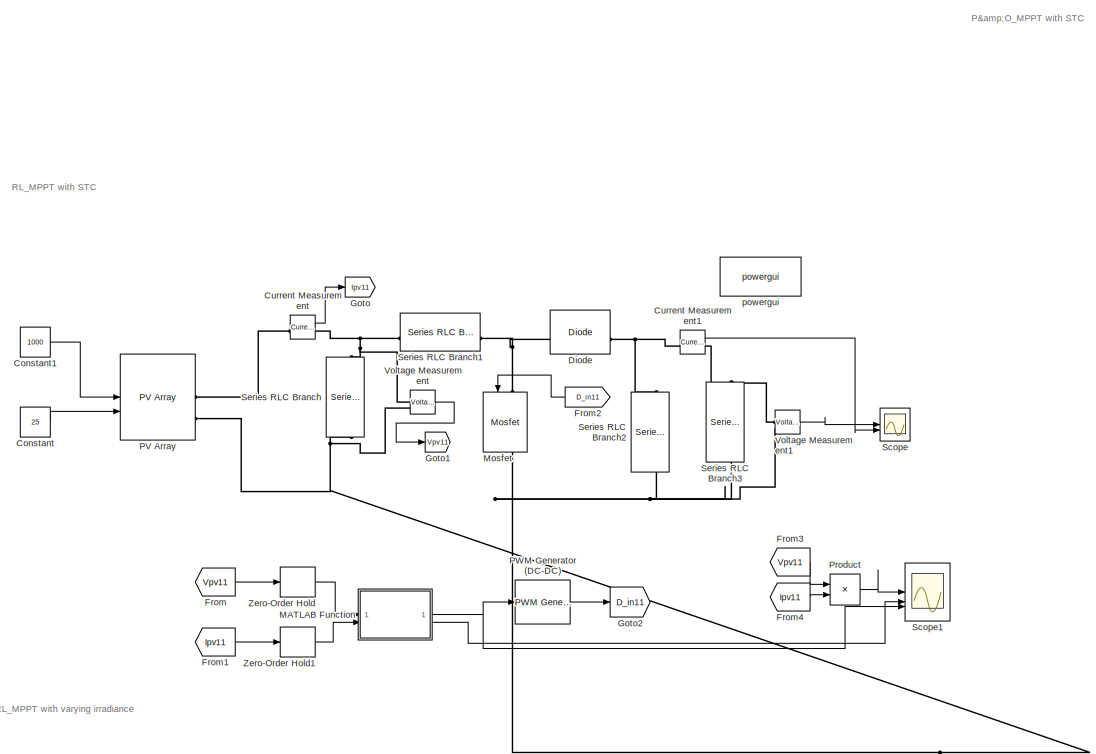
[diagram: root canvas - part 1/5, top left region]
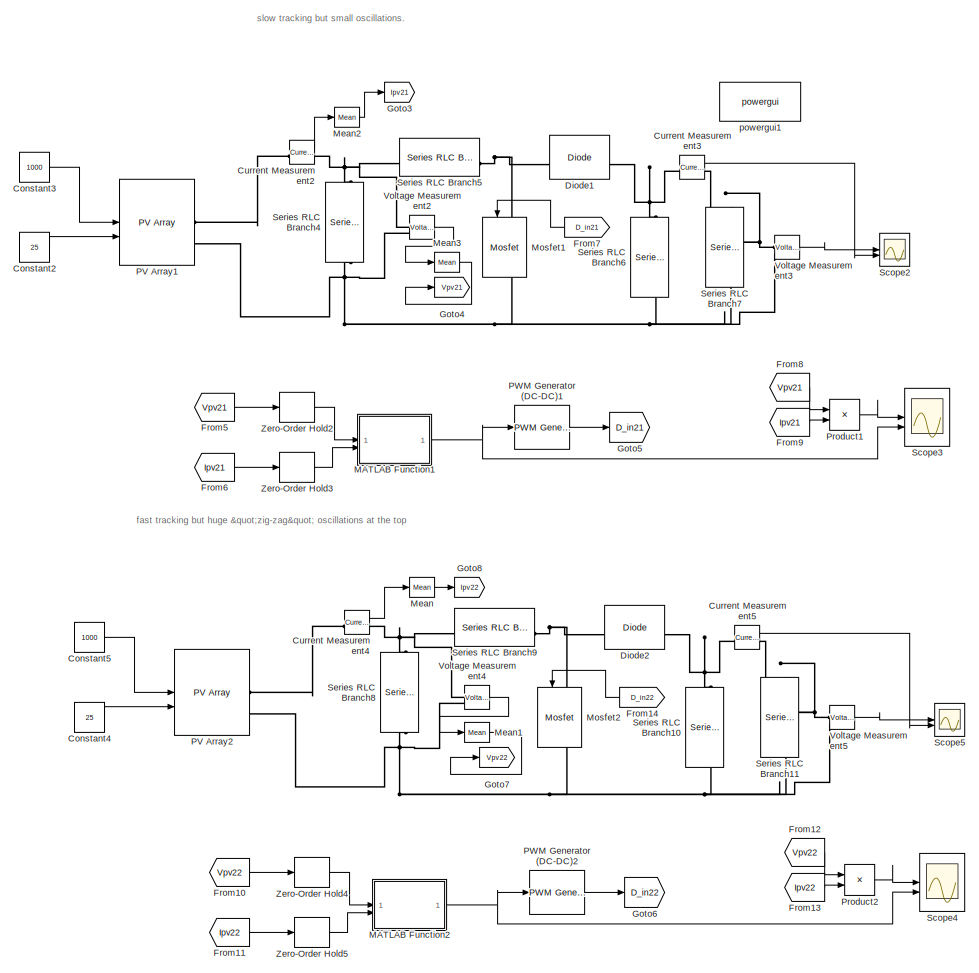
[diagram: root canvas - part 2/5, center side, full height]
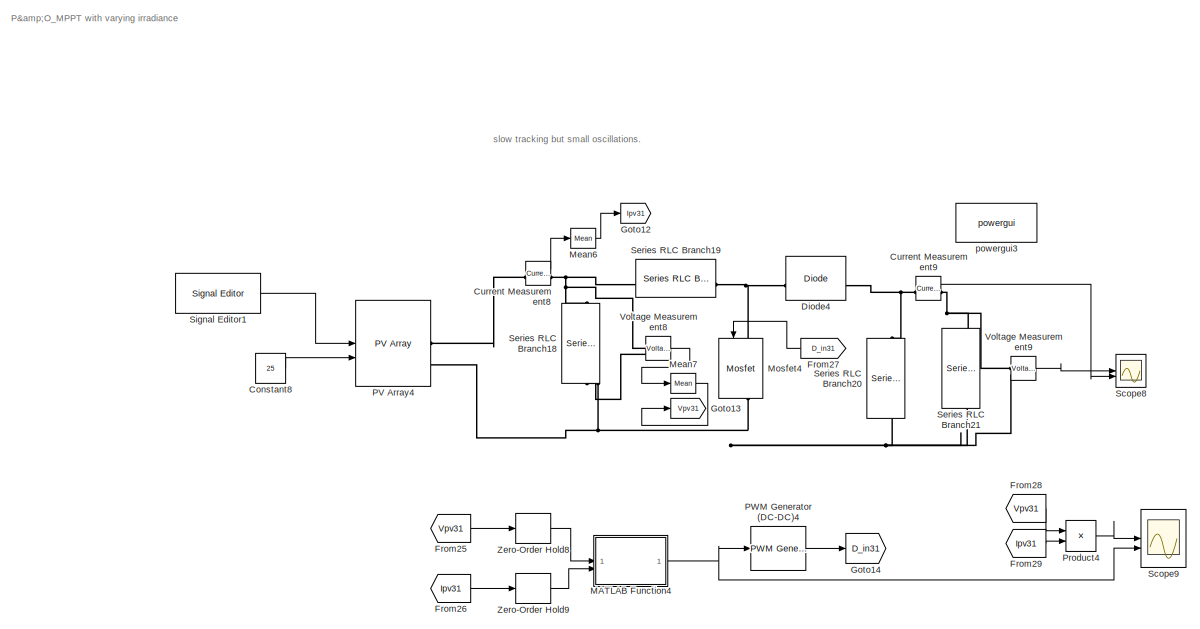
[diagram: root canvas - part 3/5, middle right region]
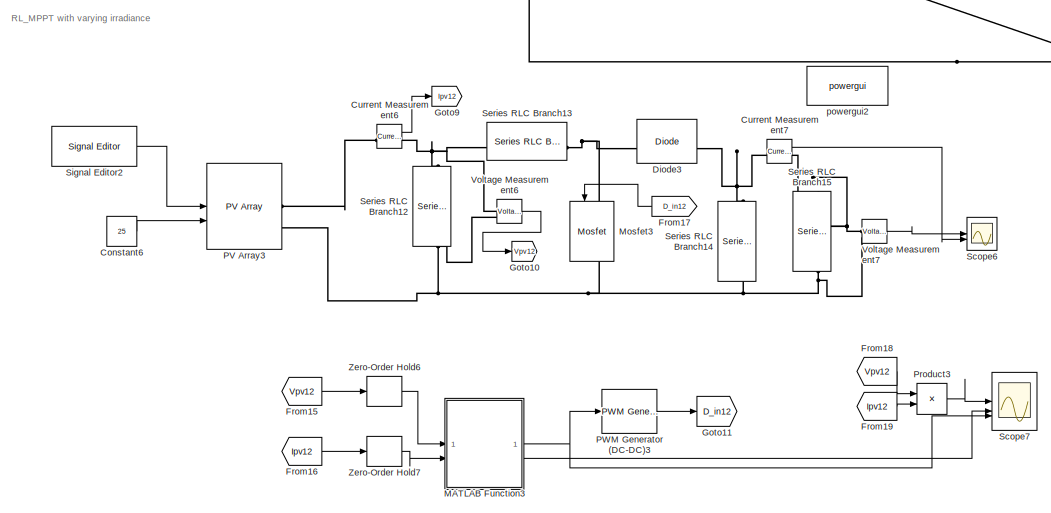
[diagram: root canvas - part 4/5, bottom left region]
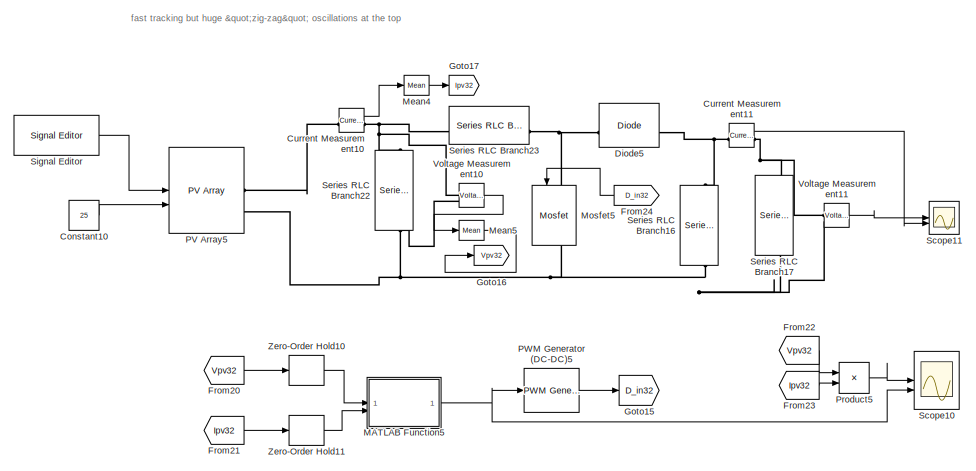
[diagram: root canvas - part 5/5, bottom right region]
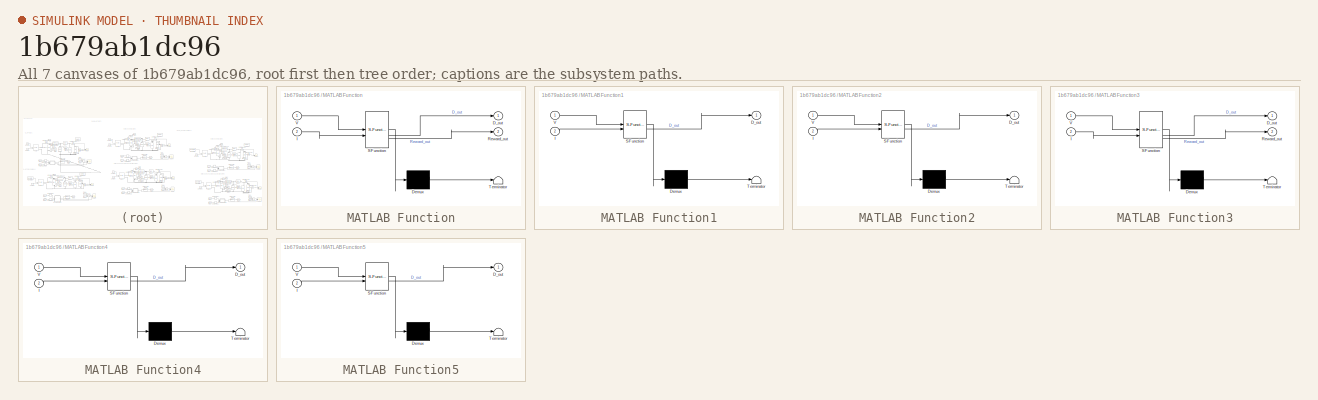
[diagram: thumbnail index - all 7 canvases of the model, root first then tree order]
MODEL slx_1b679ab1dc96
KIND model
CONFIG AbsTol = auto
CONFIG EnableMultiTasking = off
CONFIG FixedStep = 1e-5
CONFIG MaxStep = auto
CONFIG MinStep = auto
CONFIG RelTol = 1e-3
CONFIG SampleTimeConstraint = Unconstrained
CONFIG SolverName = FixedStepAuto
CONFIG StartTime = 0.0
CONFIG StopTime = 9
BLOCK [Constant] Constant
  Value = 25
BLOCK [Constant] Constant1
  Value = 1000
BLOCK [Constant] Constant10
  Value = 25
BLOCK [Constant] Constant2
  Value = 25
BLOCK [Constant] Constant3
  Value = 1000
BLOCK [Constant] Constant4
  Value = 25
BLOCK [Constant] Constant5
  Value = 1000
BLOCK [Constant] Constant6
  Value = 25
BLOCK [Constant] Constant8
  Value = 25
BLOCK [Reference] Current Measurement  REF=spsCurrentMeasurementLib/Current Measurement
  LibrarySourceBlock = sps_lib/Sensors and Measurements/Current Measurement
  SourceBlock = spsCurrentMeasurementLib/Current Measurement
  SourceType = Current Measurement
  UserDataPersistent = on
BLOCK [Reference] Current Measurement1  REF=spsCurrentMeasurementLib/Current Measurement
  LibrarySourceBlock = sps_lib/Sensors and Measurements/Current Measurement
  SourceBlock = spsCurrentMeasurementLib/Current Measurement
  SourceType = Current Measurement
  UserDataPersistent = on
BLOCK [Reference] Current Measurement10  REF=spsCurrentMeasurementLib/Current Measurement
  LibrarySourceBlock = sps_lib/Sensors and Measurements/Current Measurement
  SourceBlock = spsCurrentMeasurementLib/Current Measurement
  SourceType = Current Measurement
  UserDataPersistent = on
BLOCK [Reference] Current Measurement11  REF=spsCurrentMeasurementLib/Current Measurement
  LibrarySourceBlock = sps_lib/Sensors and Measurements/Current Measurement
  SourceBlock = spsCurrentMeasurementLib/Current Measurement
  SourceType = Current Measurement
  UserDataPersistent = on
BLOCK [Reference] Current Measurement2  REF=spsCurrentMeasurementLib/Current Measurement
  LibrarySourceBlock = sps_lib/Sensors and Measurements/Current Measurement
  SourceBlock = spsCurrentMeasurementLib/Current Measurement
  SourceType = Current Measurement
  UserDataPersistent = on
BLOCK [Reference] Current Measurement3  REF=spsCurrentMeasurementLib/Current Measurement
  LibrarySourceBlock = sps_lib/Sensors and Measurements/Current Measurement
  SourceBlock = spsCurrentMeasurementLib/Current Measurement
  SourceType = Current Measurement
  UserDataPersistent = on
BLOCK [Reference] Current Measurement4  REF=spsCurrentMeasurementLib/Current Measurement
  LibrarySourceBlock = sps_lib/Sensors and Measurements/Current Measurement
  SourceBlock = spsCurrentMeasurementLib/Current Measurement
  SourceType = Current Measurement
  UserDataPersistent = on
BLOCK [Reference] Current Measurement5  REF=spsCurrentMeasurementLib/Current Measurement
  LibrarySourceBlock = sps_lib/Sensors and Measurements/Current Measurement
  SourceBlock = spsCurrentMeasurementLib/Current Measurement
  SourceType = Current Measurement
  UserDataPersistent = on
BLOCK [Reference] Current Measurement6  REF=spsCurrentMeasurementLib/Current Measurement
  LibrarySourceBlock = sps_lib/Sensors and Measurements/Current Measurement
  SourceBlock = spsCurrentMeasurementLib/Current Measurement
  SourceType = Current Measurement
  UserDataPersistent = on
BLOCK [Reference] Current Measurement7  REF=spsCurrentMeasurementLib/Current Measurement
  LibrarySourceBlock = sps_lib/Sensors and Measurements/Current Measurement
  SourceBlock = spsCurrentMeasurementLib/Current Measurement
  SourceType = Current Measurement
  UserDataPersistent = on
BLOCK [Reference] Current Measurement8  REF=spsCurrentMeasurementLib/Current Measurement
  LibrarySourceBlock = sps_lib/Sensors and Measurements/Current Measurement
  SourceBlock = spsCurrentMeasurementLib/Current Measurement
  SourceType = Current Measurement
  UserDataPersistent = on
BLOCK [Reference] Current Measurement9  REF=spsCurrentMeasurementLib/Current Measurement
  LibrarySourceBlock = sps_lib/Sensors and Measurements/Current Measurement
  SourceBlock = spsCurrentMeasurementLib/Current Measurement
  SourceType = Current Measurement
  UserDataPersistent = on
BLOCK [Reference] Diode  REF=spsDiodeLib/Diode
  LibrarySourceBlock = sps_lib/Power Electronics/Diode
  SourceBlock = spsDiodeLib/Diode
  SourceType = Diode
BLOCK [Reference] Diode1  REF=spsDiodeLib/Diode
  LibrarySourceBlock = sps_lib/Power Electronics/Diode
  SourceBlock = spsDiodeLib/Diode
  SourceType = Diode
BLOCK [Reference] Diode2  REF=spsDiodeLib/Diode
  LibrarySourceBlock = sps_lib/Power Electronics/Diode
  SourceBlock = spsDiodeLib/Diode
  SourceType = Diode
BLOCK [Reference] Diode3  REF=spsDiodeLib/Diode
  LibrarySourceBlock = sps_lib/Power Electronics/Diode
  SourceBlock = spsDiodeLib/Diode
  SourceType = Diode
BLOCK [Reference] Diode4  REF=spsDiodeLib/Diode
  LibrarySourceBlock = sps_lib/Power Electronics/Diode
  SourceBlock = spsDiodeLib/Diode
  SourceType = Diode
BLOCK [Reference] Diode5  REF=spsDiodeLib/Diode
  LibrarySourceBlock = sps_lib/Power Electronics/Diode
  SourceBlock = spsDiodeLib/Diode
  SourceType = Diode
BLOCK [From] From
  GotoTag = Vpv11
  TagVisibility = global
BLOCK [From] From1
  GotoTag = Ipv11
  TagVisibility = global
BLOCK [From] From10
  GotoTag = Vpv22
  TagVisibility = global
BLOCK [From] From11
  GotoTag = Ipv22
  TagVisibility = global
BLOCK [From] From12
  GotoTag = Vpv22
  TagVisibility = global
BLOCK [From] From13
  GotoTag = Ipv22
  TagVisibility = global
BLOCK [From] From14
  GotoTag = D_in22
  NameLocation = top
  TagVisibility = global
BLOCK [From] From15
  GotoTag = Vpv12
  TagVisibility = global
BLOCK [From] From16
  GotoTag = Ipv12
  TagVisibility = global
BLOCK [From] From17
  GotoTag = D_in12
  NameLocation = top
  TagVisibility = global
BLOCK [From] From18
  GotoTag = Vpv12
  TagVisibility = global
BLOCK [From] From19
  GotoTag = Ipv12
  TagVisibility = global
BLOCK [From] From2
  GotoTag = D_in11
  NameLocation = top
  TagVisibility = global
BLOCK [From] From20
  GotoTag = Vpv32
  TagVisibility = global
BLOCK [From] From21
  GotoTag = Ipv32
  TagVisibility = global
BLOCK [From] From22
  GotoTag = Vpv32
  TagVisibility = global
BLOCK [From] From23
  GotoTag = Ipv32
  TagVisibility = global
BLOCK [From] From24
  GotoTag = D_in32
  NameLocation = top
  TagVisibility = global
BLOCK [From] From25
  GotoTag = Vpv31
  TagVisibility = global
BLOCK [From] From26
  GotoTag = Ipv31
  TagVisibility = global
BLOCK [From] From27
  GotoTag = D_in31
  NameLocation = top
  TagVisibility = global
BLOCK [From] From28
  GotoTag = Vpv31
  TagVisibility = global
BLOCK [From] From29
  GotoTag = Ipv31
  TagVisibility = global
BLOCK [From] From3
  GotoTag = Vpv11
  TagVisibility = global
BLOCK [From] From4
  GotoTag = Ipv11
  TagVisibility = global
BLOCK [From] From5
  GotoTag = Vpv21
  TagVisibility = global
BLOCK [From] From6
  GotoTag = Ipv21
  TagVisibility = global
BLOCK [From] From7
  GotoTag = D_in21
  NameLocation = top
  TagVisibility = global
BLOCK [From] From8
  GotoTag = Vpv21
  TagVisibility = global
BLOCK [From] From9
  GotoTag = Ipv21
  TagVisibility = global
BLOCK [Goto] Goto
  GotoTag = Ipv11
  TagVisibility = global
BLOCK [Goto] Goto1
  GotoTag = Vpv11
  TagVisibility = global
BLOCK [Goto] Goto10
  GotoTag = Vpv12
  TagVisibility = global
BLOCK [Goto] Goto11
  GotoTag = D_in12
  TagVisibility = global
BLOCK [Goto] Goto12
  GotoTag = Ipv31
  TagVisibility = global
BLOCK [Goto] Goto13
  GotoTag = Vpv31
  TagVisibility = global
BLOCK [Goto] Goto14
  GotoTag = D_in31
  TagVisibility = global
BLOCK [Goto] Goto15
  GotoTag = D_in32
  TagVisibility = global
BLOCK [Goto] Goto16
  GotoTag = Vpv32
  TagVisibility = global
BLOCK [Goto] Goto17
  GotoTag = Ipv32
  TagVisibility = global
BLOCK [Goto] Goto2
  GotoTag = D_in11
  TagVisibility = global
BLOCK [Goto] Goto3
  GotoTag = Ipv21
  TagVisibility = global
BLOCK [Goto] Goto4
  GotoTag = Vpv21
  TagVisibility = global
BLOCK [Goto] Goto5
  GotoTag = D_in21
  TagVisibility = global
BLOCK [Goto] Goto6
  GotoTag = D_in22
  TagVisibility = global
BLOCK [Goto] Goto7
  GotoTag = Vpv22
  TagVisibility = global
BLOCK [Goto] Goto8
  GotoTag = Ipv22
  TagVisibility = global
BLOCK [Goto] Goto9
  GotoTag = Ipv12
  TagVisibility = global
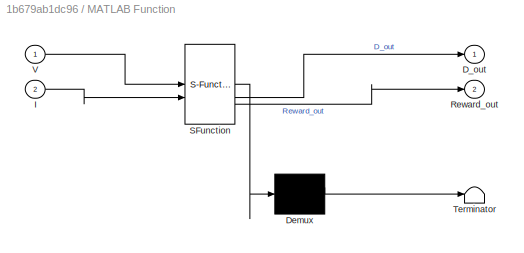
BLOCK [SubSystem] MATLAB Function
  ErrorFcn = Stateflow.Translate.translate
  PermitHierarchicalResolution = ExplicitOnly
  SFBlockType = MATLAB Function
  TreatAsAtomicUnit = on
BLOCK [Demux] MATLAB Function/ Demux 
  Outputs = 1
BLOCK [S-Function] MATLAB Function/ SFunction 
  EnableBusSupport = on
  FunctionName = sf_sfun
  PortCounts = [2 3]
  SFcnIsStateOwnerBlock = off
  SFunctionDeploymentMode = off
  Tag = Stateflow S-Function 2
BLOCK [Terminator] MATLAB Function/ Terminator 
BLOCK [Outport] MATLAB Function/D_out
BLOCK [Inport] MATLAB Function/I
  Port = 2
BLOCK [Outport] MATLAB Function/Reward_out
  Port = 2
BLOCK [Inport] MATLAB Function/V
BLOCK [SubSystem] MATLAB Function1
  ErrorFcn = Stateflow.Translate.translate
  PermitHierarchicalResolution = ExplicitOnly
  SFBlockType = MATLAB Function
  TreatAsAtomicUnit = on
BLOCK [Demux] MATLAB Function1/ Demux 
  Outputs = 1
BLOCK [S-Function] MATLAB Function1/ SFunction 
  EnableBusSupport = on
  FunctionName = sf_sfun
  PortCounts = [2 2]
  SFcnIsStateOwnerBlock = off
  SFunctionDeploymentMode = off
  Tag = Stateflow S-Function 1
BLOCK [Terminator] MATLAB Function1/ Terminator 
BLOCK [Outport] MATLAB Function1/D_out
BLOCK [Inport] MATLAB Function1/I
  Port = 2
BLOCK [Inport] MATLAB Function1/V
BLOCK [SubSystem] MATLAB Function2
  ErrorFcn = Stateflow.Translate.translate
  PermitHierarchicalResolution = ExplicitOnly
  SFBlockType = MATLAB Function
  TreatAsAtomicUnit = on
BLOCK [Demux] MATLAB Function2/ Demux 
  Outputs = 1
BLOCK [S-Function] MATLAB Function2/ SFunction 
  EnableBusSupport = on
  FunctionName = sf_sfun
  PortCounts = [2 2]
  SFcnIsStateOwnerBlock = off
  SFunctionDeploymentMode = off
  Tag = Stateflow S-Function 3
BLOCK [Terminator] MATLAB Function2/ Terminator 
BLOCK [Outport] MATLAB Function2/D_out
BLOCK [Inport] MATLAB Function2/I
  Port = 2
BLOCK [Inport] MATLAB Function2/V
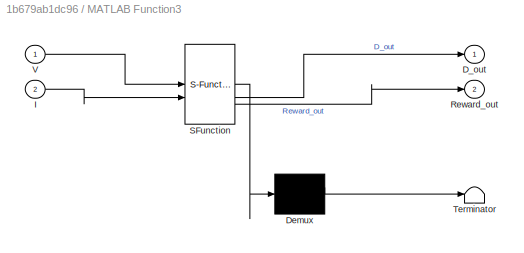
BLOCK [SubSystem] MATLAB Function3
  ErrorFcn = Stateflow.Translate.translate
  PermitHierarchicalResolution = ExplicitOnly
  SFBlockType = MATLAB Function
  TreatAsAtomicUnit = on
BLOCK [Demux] MATLAB Function3/ Demux 
  Outputs = 1
BLOCK [S-Function] MATLAB Function3/ SFunction 
  EnableBusSupport = on
  FunctionName = sf_sfun
  PortCounts = [2 3]
  SFcnIsStateOwnerBlock = off
  SFunctionDeploymentMode = off
  Tag = Stateflow S-Function 4
BLOCK [Terminator] MATLAB Function3/ Terminator 
BLOCK [Outport] MATLAB Function3/D_out
BLOCK [Inport] MATLAB Function3/I
  Port = 2
BLOCK [Outport] MATLAB Function3/Reward_out
  Port = 2
BLOCK [Inport] MATLAB Function3/V
BLOCK [SubSystem] MATLAB Function4
  ErrorFcn = Stateflow.Translate.translate
  PermitHierarchicalResolution = ExplicitOnly
  SFBlockType = MATLAB Function
  TreatAsAtomicUnit = on
BLOCK [Demux] MATLAB Function4/ Demux 
  Outputs = 1
BLOCK [S-Function] MATLAB Function4/ SFunction 
  EnableBusSupport = on
  FunctionName = sf_sfun
  PortCounts = [2 2]
  SFcnIsStateOwnerBlock = off
  SFunctionDeploymentMode = off
  Tag = Stateflow S-Function 5
BLOCK [Terminator] MATLAB Function4/ Terminator 
BLOCK [Outport] MATLAB Function4/D_out
BLOCK [Inport] MATLAB Function4/I
  Port = 2
BLOCK [Inport] MATLAB Function4/V
BLOCK [SubSystem] MATLAB Function5
  ErrorFcn = Stateflow.Translate.translate
  PermitHierarchicalResolution = ExplicitOnly
  SFBlockType = MATLAB Function
  TreatAsAtomicUnit = on
BLOCK [Demux] MATLAB Function5/ Demux 
  Outputs = 1
BLOCK [S-Function] MATLAB Function5/ SFunction 
  EnableBusSupport = on
  FunctionName = sf_sfun
  PortCounts = [2 2]
  SFcnIsStateOwnerBlock = off
  SFunctionDeploymentMode = off
  Tag = Stateflow S-Function 6
BLOCK [Terminator] MATLAB Function5/ Terminator 
BLOCK [Outport] MATLAB Function5/D_out
BLOCK [Inport] MATLAB Function5/I
  Port = 2
BLOCK [Inport] MATLAB Function5/V
BLOCK [Reference] Mean  REF=spsMeanLib/Mean
  LibrarySourceBlock = sps_lib/Sensors and Measurements/Mean
  SourceBlock = spsMeanLib/Mean
  SourceType = Mean
BLOCK [Reference] Mean1  REF=spsMeanLib/Mean
  LibrarySourceBlock = sps_lib/Sensors and Measurements/Mean
  SourceBlock = spsMeanLib/Mean
  SourceType = Mean
BLOCK [Reference] Mean2  REF=spsMeanLib/Mean
  LibrarySourceBlock = sps_lib/Sensors and Measurements/Mean
  SourceBlock = spsMeanLib/Mean
  SourceType = Mean
BLOCK [Reference] Mean3  REF=spsMeanLib/Mean
  LibrarySourceBlock = sps_lib/Sensors and Measurements/Mean
  SourceBlock = spsMeanLib/Mean
  SourceType = Mean
BLOCK [Reference] Mean4  REF=spsMeanLib/Mean
  LibrarySourceBlock = sps_lib/Sensors and Measurements/Mean
  SourceBlock = spsMeanLib/Mean
  SourceType = Mean
BLOCK [Reference] Mean5  REF=spsMeanLib/Mean
  LibrarySourceBlock = sps_lib/Sensors and Measurements/Mean
  SourceBlock = spsMeanLib/Mean
  SourceType = Mean
BLOCK [Reference] Mean6  REF=spsMeanLib/Mean
  LibrarySourceBlock = sps_lib/Sensors and Measurements/Mean
  SourceBlock = spsMeanLib/Mean
  SourceType = Mean
BLOCK [Reference] Mean7  REF=spsMeanLib/Mean
  LibrarySourceBlock = sps_lib/Sensors and Measurements/Mean
  SourceBlock = spsMeanLib/Mean
  SourceType = Mean
BLOCK [Reference] Mosfet  REF=spsMosfetLib/Mosfet
  LibrarySourceBlock = sps_lib/Power Electronics/Mosfet
  NameLocation = left
  SourceBlock = spsMosfetLib/Mosfet
  SourceType = Mosfet
BLOCK [Reference] Mosfet1  REF=spsMosfetLib/Mosfet
  LibrarySourceBlock = sps_lib/Power Electronics/Mosfet
  NameLocation = left
  SourceBlock = spsMosfetLib/Mosfet
  SourceType = Mosfet
BLOCK [Reference] Mosfet2  REF=spsMosfetLib/Mosfet
  LibrarySourceBlock = sps_lib/Power Electronics/Mosfet
  NameLocation = left
  SourceBlock = spsMosfetLib/Mosfet
  SourceType = Mosfet
BLOCK [Reference] Mosfet3  REF=spsMosfetLib/Mosfet
  LibrarySourceBlock = sps_lib/Power Electronics/Mosfet
  NameLocation = left
  SourceBlock = spsMosfetLib/Mosfet
  SourceType = Mosfet
BLOCK [Reference] Mosfet4  REF=spsMosfetLib/Mosfet
  LibrarySourceBlock = sps_lib/Power Electronics/Mosfet
  NameLocation = left
  SourceBlock = spsMosfetLib/Mosfet
  SourceType = Mosfet
BLOCK [Reference] Mosfet5  REF=spsMosfetLib/Mosfet
  LibrarySourceBlock = sps_lib/Power Electronics/Mosfet
  NameLocation = left
  SourceBlock = spsMosfetLib/Mosfet
  SourceType = Mosfet
BLOCK [Reference] PV Array  REF=spsPVArrayLib/PV Array
  LibrarySourceBlock = sps_lib/Sources/PV Array
  SourceBlock = spsPVArrayLib/PV Array
  SourceType = PV array
BLOCK [Reference] PV Array1  REF=spsPVArrayLib/PV Array
  LibrarySourceBlock = sps_lib/Sources/PV Array
  SourceBlock = spsPVArrayLib/PV Array
  SourceType = PV array
BLOCK [Reference] PV Array2  REF=spsPVArrayLib/PV Array
  LibrarySourceBlock = sps_lib/Sources/PV Array
  SourceBlock = spsPVArrayLib/PV Array
  SourceType = PV array
BLOCK [Reference] PV Array3  REF=spsPVArrayLib/PV Array
  LibrarySourceBlock = sps_lib/Sources/PV Array
  SourceBlock = spsPVArrayLib/PV Array
  SourceType = PV array
BLOCK [Reference] PV Array4  REF=spsPVArrayLib/PV Array
  LibrarySourceBlock = sps_lib/Sources/PV Array
  SourceBlock = spsPVArrayLib/PV Array
  SourceType = PV array
BLOCK [Reference] PV Array5  REF=spsPVArrayLib/PV Array
  LibrarySourceBlock = sps_lib/Sources/PV Array
  SourceBlock = spsPVArrayLib/PV Array
  SourceType = PV array
BLOCK [Reference] PWM Generator (DC-DC)  REF=spsPWMGeneratorDCDCLib/PWM Generator
(DC-DC)
  LibrarySourceBlock = sps_lib/Power Electronics/Power Electronics Control/PWM Generator\n(DC-DC)
  SourceBlock = spsPWMGeneratorDCDCLib/PWM Generator\n(DC-DC)
  SourceType = PWM Generator (DC-DC)
BLOCK [Reference] PWM Generator (DC-DC)1  REF=spsPWMGeneratorDCDCLib/PWM Generator
(DC-DC)
  LibrarySourceBlock = sps_lib/Power Electronics/Power Electronics Control/PWM Generator\n(DC-DC)
  SourceBlock = spsPWMGeneratorDCDCLib/PWM Generator\n(DC-DC)
  SourceType = PWM Generator (DC-DC)
BLOCK [Reference] PWM Generator (DC-DC)2  REF=spsPWMGeneratorDCDCLib/PWM Generator
(DC-DC)
  LibrarySourceBlock = sps_lib/Power Electronics/Power Electronics Control/PWM Generator\n(DC-DC)
  SourceBlock = spsPWMGeneratorDCDCLib/PWM Generator\n(DC-DC)
  SourceType = PWM Generator (DC-DC)
BLOCK [Reference] PWM Generator (DC-DC)3  REF=spsPWMGeneratorDCDCLib/PWM Generator
(DC-DC)
  LibrarySourceBlock = sps_lib/Power Electronics/Power Electronics Control/PWM Generator\n(DC-DC)
  SourceBlock = spsPWMGeneratorDCDCLib/PWM Generator\n(DC-DC)
  SourceType = PWM Generator (DC-DC)
BLOCK [Reference] PWM Generator (DC-DC)4  REF=spsPWMGeneratorDCDCLib/PWM Generator
(DC-DC)
  LibrarySourceBlock = sps_lib/Power Electronics/Power Electronics Control/PWM Generator\n(DC-DC)
  SourceBlock = spsPWMGeneratorDCDCLib/PWM Generator\n(DC-DC)
  SourceType = PWM Generator (DC-DC)
BLOCK [Reference] PWM Generator (DC-DC)5  REF=spsPWMGeneratorDCDCLib/PWM Generator
(DC-DC)
  LibrarySourceBlock = sps_lib/Power Electronics/Power Electronics Control/PWM Generator\n(DC-DC)
  SourceBlock = spsPWMGeneratorDCDCLib/PWM Generator\n(DC-DC)
  SourceType = PWM Generator (DC-DC)
BLOCK [Product] Product
BLOCK [Product] Product1
BLOCK [Product] Product2
BLOCK [Product] Product3
BLOCK [Product] Product4
BLOCK [Product] Product5
BLOCK [Scope] Scope
  Floating = off
  NumInputPorts = 2
  ScopeSpecificationString = Simulink.scopes.TimeScopeBlockCfg('CurrentConfiguration', extmgr.ConfigurationSet(extmgr.Configuration('Core','General UI',true),extmgr.Configuration('Core','Source UI',true),extmgr.Configuration('Sources','WiredSimulink',true),extmgr.Configuration('Visuals','Time Domain',true,'SerializedDisplays',{struct('MinYLimReal','-4.29309','MaxYLimReal','38.63777','YLabelReal','','MinYLimMag','0.00000','Max...<+1456ch>
BLOCK [Scope] Scope1
  Floating = off
  NumInputPorts = 3
  ScopeSpecificationString = Simulink.scopes.TimeScopeBlockCfg('CurrentConfiguration', extmgr.ConfigurationSet(extmgr.Configuration('Core','General UI',true),extmgr.Configuration('Core','Source UI',true),extmgr.Configuration('Sources','WiredSimulink',true,'DataLoggingVariableName','ScopeData1'),extmgr.Configuration('Visuals','Time Domain',true,'SerializedDisplays',{struct('MinYLimReal','-58.70857','MaxYLimReal','73.39178','YL...<+3286ch>
BLOCK [Scope] Scope10
  Floating = off
  NumInputPorts = 2
  ScopeSpecificationString = Simulink.scopes.TimeScopeBlockCfg('CurrentConfiguration', extmgr.ConfigurationSet(extmgr.Configuration('Core','General UI',true),extmgr.Configuration('Core','Source UI',true),extmgr.Configuration('Sources','WiredSimulink',true,'DataLoggingVariableName','ScopeData3'),extmgr.Configuration('Visuals','Time Domain',true,'SerializedDisplays',{struct('MinYLimReal','-7.44307','MaxYLimReal','66.98759','YLa...<+2408ch>
BLOCK [Scope] Scope11
  Floating = off
  NumInputPorts = 2
  ScopeSpecificationString = Simulink.scopes.TimeScopeBlockCfg('CurrentConfiguration', extmgr.ConfigurationSet(extmgr.Configuration('Core','General UI',true),extmgr.Configuration('Core','Source UI',true),extmgr.Configuration('Sources','WiredSimulink',true,'DataLoggingVariableName','ScopeData4'),extmgr.Configuration('Visuals','Time Domain',true,'SerializedDisplays',{struct('MinYLimReal','-4.30143','MaxYLimReal','38.71289','YLa...<+1495ch>
BLOCK [Scope] Scope2
  Floating = off
  NumInputPorts = 2
  ScopeSpecificationString = Simulink.scopes.TimeScopeBlockCfg('CurrentConfiguration', extmgr.ConfigurationSet(extmgr.Configuration('Core','General UI',true),extmgr.Configuration('Core','Source UI',true),extmgr.Configuration('Sources','WiredSimulink',true,'DataLoggingVariableName','ScopeData1'),extmgr.Configuration('Visuals','Time Domain',true,'SerializedDisplays',{struct('MinYLimReal','-4.29309','MaxYLimReal','38.63777','YLa...<+1495ch>
BLOCK [Scope] Scope3
  Floating = off
  NumInputPorts = 2
  ScopeSpecificationString = Simulink.scopes.TimeScopeBlockCfg('CurrentConfiguration', extmgr.ConfigurationSet(extmgr.Configuration('Core','General UI',true),extmgr.Configuration('Core','Source UI',true),extmgr.Configuration('Sources','WiredSimulink',true,'DataLoggingVariableName','ScopeData2'),extmgr.Configuration('Visuals','Time Domain',true,'SerializedDisplays',{struct('MinYLimReal','-7.44308','MaxYLimReal','66.98776','YLa...<+2357ch>
BLOCK [Scope] Scope4
  Floating = off
  NumInputPorts = 2
  ScopeSpecificationString = Simulink.scopes.TimeScopeBlockCfg('CurrentConfiguration', extmgr.ConfigurationSet(extmgr.Configuration('Core','General UI',true),extmgr.Configuration('Core','Source UI',true),extmgr.Configuration('Sources','WiredSimulink',true,'DataLoggingVariableName','ScopeData3'),extmgr.Configuration('Visuals','Time Domain',true,'SerializedDisplays',{struct('MinYLimReal','-7.44307','MaxYLimReal','66.98759','YLa...<+2343ch>
BLOCK [Scope] Scope5
  Floating = off
  NumInputPorts = 2
  ScopeSpecificationString = Simulink.scopes.TimeScopeBlockCfg('CurrentConfiguration', extmgr.ConfigurationSet(extmgr.Configuration('Core','General UI',true),extmgr.Configuration('Core','Source UI',true),extmgr.Configuration('Sources','WiredSimulink',true,'DataLoggingVariableName','ScopeData4'),extmgr.Configuration('Visuals','Time Domain',true,'SerializedDisplays',{struct('MinYLimReal','-4.30143','MaxYLimReal','38.71289','YLa...<+1495ch>
BLOCK [Scope] Scope6
  Floating = off
  NumInputPorts = 2
  ScopeSpecificationString = Simulink.scopes.TimeScopeBlockCfg('CurrentConfiguration', extmgr.ConfigurationSet(extmgr.Configuration('Core','General UI',true),extmgr.Configuration('Core','Source UI',true),extmgr.Configuration('Sources','WiredSimulink',true,'DataLoggingVariableName','ScopeData1'),extmgr.Configuration('Visuals','Time Domain',true,'SerializedDisplays',{struct('MinYLimReal','-4.29309','MaxYLimReal','38.63777','YLa...<+1495ch>
BLOCK [Scope] Scope7
  Floating = off
  NumInputPorts = 3
  ScopeSpecificationString = Simulink.scopes.TimeScopeBlockCfg('CurrentConfiguration', extmgr.ConfigurationSet(extmgr.Configuration('Core','General UI',true),extmgr.Configuration('Core','Source UI',true),extmgr.Configuration('Sources','WiredSimulink',true,'DataLoggingVariableName','ScopeData2'),extmgr.Configuration('Visuals','Time Domain',true,'SerializedDisplays',{struct('MinYLimReal','-58.70857','MaxYLimReal','73.39178','YL...<+3322ch>
BLOCK [Scope] Scope8
  Floating = off
  NumInputPorts = 2
  ScopeSpecificationString = Simulink.scopes.TimeScopeBlockCfg('CurrentConfiguration', extmgr.ConfigurationSet(extmgr.Configuration('Core','General UI',true),extmgr.Configuration('Core','Source UI',true),extmgr.Configuration('Sources','WiredSimulink',true,'DataLoggingVariableName','ScopeData5'),extmgr.Configuration('Visuals','Time Domain',true,'SerializedDisplays',{struct('MinYLimReal','-4.29309','MaxYLimReal','38.63777','YLa...<+1495ch>
BLOCK [Scope] Scope9
  Floating = off
  NumInputPorts = 2
  ScopeSpecificationString = Simulink.scopes.TimeScopeBlockCfg('CurrentConfiguration', extmgr.ConfigurationSet(extmgr.Configuration('Core','General UI',true),extmgr.Configuration('Core','Source UI',true),extmgr.Configuration('Sources','WiredSimulink',true,'DataLoggingVariableName','ScopeData6'),extmgr.Configuration('Visuals','Time Domain',true,'SerializedDisplays',{struct('MinYLimReal','-7.44308','MaxYLimReal','66.98776','YLa...<+2419ch>
BLOCK [Reference] Series RLC Branch  REF=spsSeriesRLCBranchLib/Series RLC Branch
  LibrarySourceBlock = sps_lib/Passives/Series RLC Branch
  NameLocation = left
  SourceBlock = spsSeriesRLCBranchLib/Series RLC Branch
  SourceType = Series RLC Branch
BLOCK [Reference] Series RLC Branch1  REF=spsSeriesRLCBranchLib/Series RLC Branch
  LibrarySourceBlock = sps_lib/Passives/Series RLC Branch
  SourceBlock = spsSeriesRLCBranchLib/Series RLC Branch
  SourceType = Series RLC Branch
BLOCK [Reference] Series RLC Branch10  REF=spsSeriesRLCBranchLib/Series RLC Branch
  LibrarySourceBlock = sps_lib/Passives/Series RLC Branch
  NameLocation = left
  SourceBlock = spsSeriesRLCBranchLib/Series RLC Branch
  SourceType = Series RLC Branch
BLOCK [Reference] Series RLC Branch11  REF=spsSeriesRLCBranchLib/Series RLC Branch
  LibrarySourceBlock = sps_lib/Passives/Series RLC Branch
  NameLocation = left
  SourceBlock = spsSeriesRLCBranchLib/Series RLC Branch
  SourceType = Series RLC Branch
BLOCK [Reference] Series RLC Branch12  REF=spsSeriesRLCBranchLib/Series RLC Branch
  LibrarySourceBlock = sps_lib/Passives/Series RLC Branch
  NameLocation = left
  SourceBlock = spsSeriesRLCBranchLib/Series RLC Branch
  SourceType = Series RLC Branch
BLOCK [Reference] Series RLC Branch13  REF=spsSeriesRLCBranchLib/Series RLC Branch
  LibrarySourceBlock = sps_lib/Passives/Series RLC Branch
  SourceBlock = spsSeriesRLCBranchLib/Series RLC Branch
  SourceType = Series RLC Branch
BLOCK [Reference] Series RLC Branch14  REF=spsSeriesRLCBranchLib/Series RLC Branch
  LibrarySourceBlock = sps_lib/Passives/Series RLC Branch
  NameLocation = left
  SourceBlock = spsSeriesRLCBranchLib/Series RLC Branch
  SourceType = Series RLC Branch
BLOCK [Reference] Series RLC Branch15  REF=spsSeriesRLCBranchLib/Series RLC Branch
  LibrarySourceBlock = sps_lib/Passives/Series RLC Branch
  NameLocation = left
  SourceBlock = spsSeriesRLCBranchLib/Series RLC Branch
  SourceType = Series RLC Branch
BLOCK [Reference] Series RLC Branch16  REF=spsSeriesRLCBranchLib/Series RLC Branch
  LibrarySourceBlock = sps_lib/Passives/Series RLC Branch
  NameLocation = left
  SourceBlock = spsSeriesRLCBranchLib/Series RLC Branch
  SourceType = Series RLC Branch
BLOCK [Reference] Series RLC Branch17  REF=spsSeriesRLCBranchLib/Series RLC Branch
  LibrarySourceBlock = sps_lib/Passives/Series RLC Branch
  NameLocation = left
  SourceBlock = spsSeriesRLCBranchLib/Series RLC Branch
  SourceType = Series RLC Branch
BLOCK [Reference] Series RLC Branch18  REF=spsSeriesRLCBranchLib/Series RLC Branch
  LibrarySourceBlock = sps_lib/Passives/Series RLC Branch
  NameLocation = left
  SourceBlock = spsSeriesRLCBranchLib/Series RLC Branch
  SourceType = Series RLC Branch
BLOCK [Reference] Series RLC Branch19  REF=spsSeriesRLCBranchLib/Series RLC Branch
  LibrarySourceBlock = sps_lib/Passives/Series RLC Branch
  SourceBlock = spsSeriesRLCBranchLib/Series RLC Branch
  SourceType = Series RLC Branch
BLOCK [Reference] Series RLC Branch2  REF=spsSeriesRLCBranchLib/Series RLC Branch
  LibrarySourceBlock = sps_lib/Passives/Series RLC Branch
  NameLocation = left
  SourceBlock = spsSeriesRLCBranchLib/Series RLC Branch
  SourceType = Series RLC Branch
BLOCK [Reference] Series RLC Branch20  REF=spsSeriesRLCBranchLib/Series RLC Branch
  LibrarySourceBlock = sps_lib/Passives/Series RLC Branch
  NameLocation = left
  SourceBlock = spsSeriesRLCBranchLib/Series RLC Branch
  SourceType = Series RLC Branch
BLOCK [Reference] Series RLC Branch21  REF=spsSeriesRLCBranchLib/Series RLC Branch
  LibrarySourceBlock = sps_lib/Passives/Series RLC Branch
  NameLocation = left
  SourceBlock = spsSeriesRLCBranchLib/Series RLC Branch
  SourceType = Series RLC Branch
BLOCK [Reference] Series RLC Branch22  REF=spsSeriesRLCBranchLib/Series RLC Branch
  LibrarySourceBlock = sps_lib/Passives/Series RLC Branch
  NameLocation = left
  SourceBlock = spsSeriesRLCBranchLib/Series RLC Branch
  SourceType = Series RLC Branch
BLOCK [Reference] Series RLC Branch23  REF=spsSeriesRLCBranchLib/Series RLC Branch
  LibrarySourceBlock = sps_lib/Passives/Series RLC Branch
  SourceBlock = spsSeriesRLCBranchLib/Series RLC Branch
  SourceType = Series RLC Branch
BLOCK [Reference] Series RLC Branch3  REF=spsSeriesRLCBranchLib/Series RLC Branch
  LibrarySourceBlock = sps_lib/Passives/Series RLC Branch
  NameLocation = left
  SourceBlock = spsSeriesRLCBranchLib/Series RLC Branch
  SourceType = Series RLC Branch
BLOCK [Reference] Series RLC Branch4  REF=spsSeriesRLCBranchLib/Series RLC Branch
  LibrarySourceBlock = sps_lib/Passives/Series RLC Branch
  NameLocation = left
  SourceBlock = spsSeriesRLCBranchLib/Series RLC Branch
  SourceType = Series RLC Branch
BLOCK [Reference] Series RLC Branch5  REF=spsSeriesRLCBranchLib/Series RLC Branch
  LibrarySourceBlock = sps_lib/Passives/Series RLC Branch
  SourceBlock = spsSeriesRLCBranchLib/Series RLC Branch
  SourceType = Series RLC Branch
BLOCK [Reference] Series RLC Branch6  REF=spsSeriesRLCBranchLib/Series RLC Branch
  LibrarySourceBlock = sps_lib/Passives/Series RLC Branch
  NameLocation = left
  SourceBlock = spsSeriesRLCBranchLib/Series RLC Branch
  SourceType = Series RLC Branch
BLOCK [Reference] Series RLC Branch7  REF=spsSeriesRLCBranchLib/Series RLC Branch
  LibrarySourceBlock = sps_lib/Passives/Series RLC Branch
  NameLocation = left
  SourceBlock = spsSeriesRLCBranchLib/Series RLC Branch
  SourceType = Series RLC Branch
BLOCK [Reference] Series RLC Branch8  REF=spsSeriesRLCBranchLib/Series RLC Branch
  LibrarySourceBlock = sps_lib/Passives/Series RLC Branch
  NameLocation = left
  SourceBlock = spsSeriesRLCBranchLib/Series RLC Branch
  SourceType = Series RLC Branch
BLOCK [Reference] Series RLC Branch9  REF=spsSeriesRLCBranchLib/Series RLC Branch
  LibrarySourceBlock = sps_lib/Passives/Series RLC Branch
  SourceBlock = spsSeriesRLCBranchLib/Series RLC Branch
  SourceType = Series RLC Branch
BLOCK [Reference] Signal Editor  REF=SignalEditorBlockLib/Signal Editor
  LibrarySourceBlock = simulink/Sources/Signal Editor
  SourceBlock = SignalEditorBlockLib/Signal Editor
  SourceType = SignalEditor
  UserDataPersistent = on
BLOCK [Reference] Signal Editor1  REF=SignalEditorBlockLib/Signal Editor
  LibrarySourceBlock = simulink/Sources/Signal Editor
  SourceBlock = SignalEditorBlockLib/Signal Editor
  SourceType = SignalEditor
  UserDataPersistent = on
BLOCK [Reference] Signal Editor2  REF=SignalEditorBlockLib/Signal Editor
  LibrarySourceBlock = simulink/Sources/Signal Editor
  SourceBlock = SignalEditorBlockLib/Signal Editor
  SourceType = SignalEditor
  UserDataPersistent = on
BLOCK [Reference] Voltage Measurement  REF=spsVoltageMeasurementLib/Voltage Measurement
  LibrarySourceBlock = sps_lib/Sensors and Measurements/Voltage Measurement
  SourceBlock = spsVoltageMeasurementLib/Voltage Measurement
  SourceType = Voltage Measurement
  UserDataPersistent = on
BLOCK [Reference] Voltage Measurement1  REF=spsVoltageMeasurementLib/Voltage Measurement
  LibrarySourceBlock = sps_lib/Sensors and Measurements/Voltage Measurement
  SourceBlock = spsVoltageMeasurementLib/Voltage Measurement
  SourceType = Voltage Measurement
  UserDataPersistent = on
BLOCK [Reference] Voltage Measurement10  REF=spsVoltageMeasurementLib/Voltage Measurement
  LibrarySourceBlock = sps_lib/Sensors and Measurements/Voltage Measurement
  SourceBlock = spsVoltageMeasurementLib/Voltage Measurement
  SourceType = Voltage Measurement
  UserDataPersistent = on
BLOCK [Reference] Voltage Measurement11  REF=spsVoltageMeasurementLib/Voltage Measurement
  LibrarySourceBlock = sps_lib/Sensors and Measurements/Voltage Measurement
  SourceBlock = spsVoltageMeasurementLib/Voltage Measurement
  SourceType = Voltage Measurement
  UserDataPersistent = on
BLOCK [Reference] Voltage Measurement2  REF=spsVoltageMeasurementLib/Voltage Measurement
  LibrarySourceBlock = sps_lib/Sensors and Measurements/Voltage Measurement
  SourceBlock = spsVoltageMeasurementLib/Voltage Measurement
  SourceType = Voltage Measurement
  UserDataPersistent = on
BLOCK [Reference] Voltage Measurement3  REF=spsVoltageMeasurementLib/Voltage Measurement
  LibrarySourceBlock = sps_lib/Sensors and Measurements/Voltage Measurement
  SourceBlock = spsVoltageMeasurementLib/Voltage Measurement
  SourceType = Voltage Measurement
  UserDataPersistent = on
BLOCK [Reference] Voltage Measurement4  REF=spsVoltageMeasurementLib/Voltage Measurement
  LibrarySourceBlock = sps_lib/Sensors and Measurements/Voltage Measurement
  SourceBlock = spsVoltageMeasurementLib/Voltage Measurement
  SourceType = Voltage Measurement
  UserDataPersistent = on
BLOCK [Reference] Voltage Measurement5  REF=spsVoltageMeasurementLib/Voltage Measurement
  LibrarySourceBlock = sps_lib/Sensors and Measurements/Voltage Measurement
  SourceBlock = spsVoltageMeasurementLib/Voltage Measurement
  SourceType = Voltage Measurement
  UserDataPersistent = on
BLOCK [Reference] Voltage Measurement6  REF=spsVoltageMeasurementLib/Voltage Measurement
  LibrarySourceBlock = sps_lib/Sensors and Measurements/Voltage Measurement
  SourceBlock = spsVoltageMeasurementLib/Voltage Measurement
  SourceType = Voltage Measurement
  UserDataPersistent = on
BLOCK [Reference] Voltage Measurement7  REF=spsVoltageMeasurementLib/Voltage Measurement
  LibrarySourceBlock = sps_lib/Sensors and Measurements/Voltage Measurement
  SourceBlock = spsVoltageMeasurementLib/Voltage Measurement
  SourceType = Voltage Measurement
  UserDataPersistent = on
BLOCK [Reference] Voltage Measurement8  REF=spsVoltageMeasurementLib/Voltage Measurement
  LibrarySourceBlock = sps_lib/Sensors and Measurements/Voltage Measurement
  SourceBlock = spsVoltageMeasurementLib/Voltage Measurement
  SourceType = Voltage Measurement
  UserDataPersistent = on
BLOCK [Reference] Voltage Measurement9  REF=spsVoltageMeasurementLib/Voltage Measurement
  LibrarySourceBlock = sps_lib/Sensors and Measurements/Voltage Measurement
  SourceBlock = spsVoltageMeasurementLib/Voltage Measurement
  SourceType = Voltage Measurement
  UserDataPersistent = on
BLOCK [ZeroOrderHold] Zero-Order Hold
  SampleTime = 0.01
BLOCK [ZeroOrderHold] Zero-Order Hold1
  SampleTime = 0.01
BLOCK [ZeroOrderHold] Zero-Order Hold10
  SampleTime = 0.01
BLOCK [ZeroOrderHold] Zero-Order Hold11
  SampleTime = 0.01
BLOCK [ZeroOrderHold] Zero-Order Hold2
  SampleTime = 0.01
BLOCK [ZeroOrderHold] Zero-Order Hold3
  SampleTime = 0.01
BLOCK [ZeroOrderHold] Zero-Order Hold4
  SampleTime = 0.01
BLOCK [ZeroOrderHold] Zero-Order Hold5
  SampleTime = 0.01
BLOCK [ZeroOrderHold] Zero-Order Hold6
  SampleTime = 0.01
BLOCK [ZeroOrderHold] Zero-Order Hold7
  SampleTime = 0.01
BLOCK [ZeroOrderHold] Zero-Order Hold8
  SampleTime = 0.01
BLOCK [ZeroOrderHold] Zero-Order Hold9
  SampleTime = 0.01
BLOCK [Reference] powergui  REF=sps_lib/powergui
  LibrarySourceBlock = sps_lib/powergui
  Priority = 1
  SourceBlock = sps_lib/powergui
  SourceType = PSB option menu block
BLOCK [Reference] powergui1  REF=spspowerguiLib/powergui
  LibrarySourceBlock = sps_lib/powergui
  Priority = 1
  SourceBlock = spspowerguiLib/powergui
  SourceType = PSB option menu block
BLOCK [Reference] powergui2  REF=spspowerguiLib/powergui
  LibrarySourceBlock = sps_lib/powergui
  Priority = 1
  SourceBlock = spspowerguiLib/powergui
  SourceType = PSB option menu block
BLOCK [Reference] powergui3  REF=spspowerguiLib/powergui
  LibrarySourceBlock = sps_lib/powergui
  Priority = 1
  SourceBlock = spspowerguiLib/powergui
  SourceType = PSB option menu block
ANNOTATION (root): fast tracking but huge "zig-zag" oscillations at the top
ANNOTATION (root): slow tracking but small oscillations.
ANNOTATION (root): P&O_MPPT with STC
ANNOTATION (root): P&O_MPPT with varying irradiance
ANNOTATION (root): RL_MPPT with STC
ANNOTATION (root): RL_MPPT with varying irradiance
LINE Constant10:1 -> PV Array5:2
LINE Constant1:1 -> PV Array:1
LINE Constant2:1 -> PV Array1:2
LINE Constant3:1 -> PV Array1:1
LINE Constant4:1 -> PV Array2:2
LINE Constant5:1 -> PV Array2:1
LINE Constant6:1 -> PV Array3:2
LINE Constant8:1 -> PV Array4:2
LINE Constant:1 -> PV Array:2
LINE Current Measurement10:1 -> Mean4:1
LINE Current Measurement11:1 -> Scope11:2
LINE Current Measurement1:1 -> Scope:2
LINE Current Measurement2:1 -> Mean2:1
LINE Current Measurement3:1 -> Scope2:2
LINE Current Measurement4:1 -> Mean:1
LINE Current Measurement5:1 -> Scope5:2
LINE Current Measurement6:1 -> Goto9:1
LINE Current Measurement7:1 -> Scope6:2
LINE Current Measurement8:1 -> Mean6:1
LINE Current Measurement9:1 -> Scope8:2
LINE Current Measurement:1 -> Goto:1
LINE From10:1 -> Zero-Order Hold4:1
LINE From11:1 -> Zero-Order Hold5:1
LINE From12:1 -> Product2:1
LINE From13:1 -> Product2:2
LINE From14:1 -> Mosfet2:1
LINE From15:1 -> Zero-Order Hold6:1
LINE From16:1 -> Zero-Order Hold7:1
LINE From17:1 -> Mosfet3:1
LINE From18:1 -> Product3:1
LINE From19:1 -> Product3:2
LINE From1:1 -> Zero-Order Hold1:1
LINE From20:1 -> Zero-Order Hold10:1
LINE From21:1 -> Zero-Order Hold11:1
LINE From22:1 -> Product5:1
LINE From23:1 -> Product5:2
LINE From24:1 -> Mosfet5:1
LINE From25:1 -> Zero-Order Hold8:1
LINE From26:1 -> Zero-Order Hold9:1
LINE From27:1 -> Mosfet4:1
LINE From28:1 -> Product4:1
LINE From29:1 -> Product4:2
LINE From2:1 -> Mosfet:1
LINE From3:1 -> Product:1
LINE From4:1 -> Product:2
LINE From5:1 -> Zero-Order Hold2:1
LINE From6:1 -> Zero-Order Hold3:1
LINE From7:1 -> Mosfet1:1
LINE From8:1 -> Product1:1
LINE From9:1 -> Product1:2
LINE From:1 -> Zero-Order Hold:1
NET MATLAB Function1:1 -> PWM Generator (DC-DC)1:1, Scope3:2
NET MATLAB Function2:1 -> PWM Generator (DC-DC)2:1, Scope4:2
NET MATLAB Function3:1 -> PWM Generator (DC-DC)3:1, Scope7:3
LINE MATLAB Function3:2 -> Scope7:2
NET MATLAB Function4:1 -> PWM Generator (DC-DC)4:1, Scope9:2
NET MATLAB Function5:1 -> PWM Generator (DC-DC)5:1, Scope10:2
NET MATLAB Function:1 -> PWM Generator (DC-DC):1, Scope1:3
LINE MATLAB Function:2 -> Scope1:2
LINE Mean1:1 -> Goto7:1
LINE Mean2:1 -> Goto3:1
LINE Mean3:1 -> Goto4:1
LINE Mean4:1 -> Goto17:1
LINE Mean5:1 -> Goto16:1
LINE Mean6:1 -> Goto12:1
LINE Mean7:1 -> Goto13:1
LINE Mean:1 -> Goto8:1
LINE PWM Generator (DC-DC)1:1 -> Goto5:1
LINE PWM Generator (DC-DC)2:1 -> Goto6:1
LINE PWM Generator (DC-DC)3:1 -> Goto11:1
LINE PWM Generator (DC-DC)4:1 -> Goto14:1
LINE PWM Generator (DC-DC)5:1 -> Goto15:1
LINE PWM Generator (DC-DC):1 -> Goto2:1
LINE Product1:1 -> Scope3:1
LINE Product2:1 -> Scope4:1
LINE Product3:1 -> Scope7:1
LINE Product4:1 -> Scope9:1
LINE Product5:1 -> Scope10:1
LINE Product:1 -> Scope1:1
LINE Signal Editor1:1 -> PV Array4:1
LINE Signal Editor2:1 -> PV Array3:1
LINE Signal Editor:1 -> PV Array5:1
LINE Voltage Measurement10:1 -> Mean5:1
LINE Voltage Measurement11:1 -> Scope11:1
LINE Voltage Measurement1:1 -> Scope:1
LINE Voltage Measurement2:1 -> Mean3:1
LINE Voltage Measurement3:1 -> Scope2:1
LINE Voltage Measurement4:1 -> Mean1:1
LINE Voltage Measurement5:1 -> Scope5:1
LINE Voltage Measurement6:1 -> Goto10:1
LINE Voltage Measurement7:1 -> Scope6:1
LINE Voltage Measurement8:1 -> Mean7:1
LINE Voltage Measurement9:1 -> Scope8:1
LINE Voltage Measurement:1 -> Goto1:1
LINE Zero-Order Hold10:1 -> MATLAB Function5:1
LINE Zero-Order Hold11:1 -> MATLAB Function5:2
LINE Zero-Order Hold1:1 -> MATLAB Function:2
LINE Zero-Order Hold2:1 -> MATLAB Function1:1
LINE Zero-Order Hold3:1 -> MATLAB Function1:2
LINE Zero-Order Hold4:1 -> MATLAB Function2:1
LINE Zero-Order Hold5:1 -> MATLAB Function2:2
LINE Zero-Order Hold6:1 -> MATLAB Function3:1
LINE Zero-Order Hold7:1 -> MATLAB Function3:2
LINE Zero-Order Hold8:1 -> MATLAB Function4:1
LINE Zero-Order Hold9:1 -> MATLAB Function4:2
LINE Zero-Order Hold:1 -> MATLAB Function:1
PLINE Current Measurement10:LConn1 -- PV Array5:RConn1
PNET net1: Current Measurement10:RConn1 -- Series RLC Branch22:LConn1 -- Series RLC Branch23:LConn1 -- Voltage Measurement10:LConn1
PNET net2: Current Measurement11:LConn1 -- Diode5:RConn1 -- Series RLC Branch16:LConn1
PNET net3: Current Measurement11:RConn1 -- Series RLC Branch17:LConn1 -- Voltage Measurement11:LConn1
PNET net4: Current Measurement1:LConn1 -- Diode:RConn1 -- Series RLC Branch2:LConn1
PNET net5: Current Measurement1:RConn1 -- Series RLC Branch3:LConn1 -- Voltage Measurement1:LConn1
PLINE Current Measurement2:LConn1 -- PV Array1:RConn1
PNET net6: Current Measurement2:RConn1 -- Series RLC Branch4:LConn1 -- Series RLC Branch5:LConn1 -- Voltage Measurement2:LConn1
PNET net7: Current Measurement3:LConn1 -- Diode1:RConn1 -- Series RLC Branch6:LConn1
PNET net8: Current Measurement3:RConn1 -- Series RLC Branch7:LConn1 -- Voltage Measurement3:LConn1
PLINE Current Measurement4:LConn1 -- PV Array2:RConn1
PNET net9: Current Measurement4:RConn1 -- Series RLC Branch8:LConn1 -- Series RLC Branch9:LConn1 -- Voltage Measurement4:LConn1
PNET net10: Current Measurement5:LConn1 -- Diode2:RConn1 -- Series RLC Branch10:LConn1
PNET net11: Current Measurement5:RConn1 -- Series RLC Branch11:LConn1 -- Voltage Measurement5:LConn1
PLINE Current Measurement6:LConn1 -- PV Array3:RConn1
PNET net12: Current Measurement6:RConn1 -- Series RLC Branch12:LConn1 -- Series RLC Branch13:LConn1 -- Voltage Measurement6:LConn1
PNET net13: Current Measurement7:LConn1 -- Diode3:RConn1 -- Series RLC Branch14:LConn1
PNET net14: Current Measurement7:RConn1 -- Series RLC Branch15:LConn1 -- Voltage Measurement7:LConn1
PLINE Current Measurement8:LConn1 -- PV Array4:RConn1
PNET net15: Current Measurement8:RConn1 -- Series RLC Branch18:LConn1 -- Series RLC Branch19:LConn1 -- Voltage Measurement8:LConn1
PNET net16: Current Measurement9:LConn1 -- Diode4:RConn1 -- Series RLC Branch20:LConn1
PNET net17: Current Measurement9:RConn1 -- Series RLC Branch21:LConn1 -- Voltage Measurement9:LConn1
PLINE Current Measurement:LConn1 -- PV Array:RConn1
PNET net18: Current Measurement:RConn1 -- Series RLC Branch1:LConn1 -- Series RLC Branch:LConn1 -- Voltage Measurement:LConn1
PNET net19: Diode1:LConn1 -- Mosfet1:LConn1 -- Series RLC Branch5:RConn1
PNET net20: Diode2:LConn1 -- Mosfet2:LConn1 -- Series RLC Branch9:RConn1
PNET net21: Diode3:LConn1 -- Mosfet3:LConn1 -- Series RLC Branch13:RConn1
PNET net22: Diode4:LConn1 -- Mosfet4:LConn1 -- Series RLC Branch19:RConn1
PNET net23: Diode5:LConn1 -- Mosfet5:LConn1 -- Series RLC Branch23:RConn1
PNET net24: Diode:LConn1 -- Mosfet:LConn1 -- Series RLC Branch1:RConn1
PNET net25: Mosfet1:RConn1 -- PV Array1:RConn2 -- Series RLC Branch4:RConn1 -- Series RLC Branch6:RConn1 -- Series RLC Branch7:RConn1 -- Voltage Measurement2:LConn2 -- Voltage Measurement3:LConn2
PNET net26: Mosfet2:RConn1 -- PV Array2:RConn2 -- Series RLC Branch10:RConn1 -- Series RLC Branch11:RConn1 -- Series RLC Branch8:RConn1 -- Voltage Measurement4:LConn2 -- Voltage Measurement5:LConn2
PNET net27: Mosfet3:RConn1 -- PV Array3:RConn2 -- Series RLC Branch12:RConn1 -- Series RLC Branch14:RConn1 -- Series RLC Branch15:RConn1 -- Voltage Measurement6:LConn2 -- Voltage Measurement7:LConn2
PNET net28: Mosfet4:RConn1 -- PV Array4:RConn2 -- Series RLC Branch18:RConn1 -- Series RLC Branch20:RConn1 -- Series RLC Branch21:RConn1 -- Voltage Measurement8:LConn2 -- Voltage Measurement9:LConn2
PNET net29: Mosfet5:RConn1 -- PV Array5:RConn2 -- Series RLC Branch16:RConn1 -- Series RLC Branch17:RConn1 -- Series RLC Branch22:RConn1 -- Voltage Measurement10:LConn2 -- Voltage Measurement11:LConn2
PNET net30: Mosfet:RConn1 -- PV Array:RConn2 -- Series RLC Branch2:RConn1 -- Series RLC Branch3:RConn1 -- Series RLC Branch:RConn1 -- Voltage Measurement1:LConn2 -- Voltage Measurement:LConn2
note: NET lines group one-source signal fan-out (src -> all destinations, sorted); 1:1 wires keep LINE; PNET lines group multi-terminal physical nets as a canonical sorted terminal list (undirected conserving connections); 2-terminal nets keep the pairwise PLINE form
CHART MATLAB Function1 states=1 transitions=1
  STATE_LABEL 'eML_blk_kernel()'
  STATE_LABEL 'SCRIPT:\nfunction D_out = PandO_MPPT(V, I)\n    persistent D_prev P_prev V_prev Initialized\n    \n    if isempty(Initialized)\n        D_prev = 0.5;       % Initial Duty Cycle\n        P_prev = 0;\n        V_prev = 0;\n        Initialized = 1;\n    end\n    \n    % --- Parameters ---\n    % The paper tests two step sizes: \n    % Small = 0.005 (Accurate but slow)\n    % Large = 0.05 (Fast but oscillates)\n    d...<+932ch>'
CHART MATLAB Function states=1 transitions=1
  STATE_LABEL 'eML_blk_kernel()'
  STATE_LABEL 'SCRIPT:\nfunction [D_out, Reward_out] = RL_MPPT(V, I)\n    % RL-MPPT based on Q-Learning [cite: 42, 121]\n    \n    % --- Persistent Memory (Maintains values between time steps) ---\n    persistent Q E_counter D_prev P_prev S_prev A_prev Initialized\n    \n    % --- Constants from Paper ---\n    if isempty(Initialized)\n        % State Space: V (0-25V), I (0-4A) [cite: 66, 67]\n        % Actions: 5 distinct...<+2420ch>'
CHART MATLAB Function2 states=1 transitions=1
  STATE_LABEL 'eML_blk_kernel()'
  STATE_LABEL 'SCRIPT:\nfunction D_out = PandO_MPPT(V, I)\n    persistent D_prev P_prev V_prev Initialized\n    \n    if isempty(Initialized)\n        D_prev = 0.5;       % Initial Duty Cycle\n        P_prev = 0;\n        V_prev = 0;\n        Initialized = 1;\n    end\n    \n    % --- Parameters ---\n    % The paper tests two step sizes: \n    % Small = 0.005 (Accurate but slow)\n    % Large = 0.05 (Fast but oscillates)\n    d...<+931ch>'
CHART MATLAB Function3 states=1 transitions=1
  STATE_LABEL 'eML_blk_kernel()'
  STATE_LABEL 'SCRIPT:\nfunction [D_out, Reward_out] = RL_MPPT(V, I)\n    % RL-MPPT based on Q-Learning [cite: 42, 121]\n    \n    % --- Persistent Memory (Maintains values between time steps) ---\n    persistent Q E_counter D_prev P_prev S_prev A_prev Initialized\n    \n    % --- Constants from Paper ---\n    if isempty(Initialized)\n        % State Space: V (0-25V), I (0-4A) [cite: 66, 67]\n        % Actions: 5 distinct...<+2420ch>'
CHART MATLAB Function4 states=1 transitions=1
  STATE_LABEL 'eML_blk_kernel()'
  STATE_LABEL 'SCRIPT:\nfunction D_out = PandO_MPPT(V, I)\n    persistent D_prev P_prev V_prev Initialized\n    \n    if isempty(Initialized)\n        D_prev = 0.5;       % Initial Duty Cycle\n        P_prev = 0;\n        V_prev = 0;\n        Initialized = 1;\n    end\n    \n    % --- Parameters ---\n    % The paper tests two step sizes: \n    % Small = 0.005 (Accurate but slow)\n    % Large = 0.05 (Fast but oscillates)\n    d...<+932ch>'
CHART MATLAB Function5 states=1 transitions=1
  STATE_LABEL 'eML_blk_kernel()'
  STATE_LABEL 'SCRIPT:\nfunction D_out = PandO_MPPT(V, I)\n    persistent D_prev P_prev V_prev Initialized\n    \n    if isempty(Initialized)\n        D_prev = 0.5;       % Initial Duty Cycle\n        P_prev = 0;\n        V_prev = 0;\n        Initialized = 1;\n    end\n    \n    % --- Parameters ---\n    % The paper tests two step sizes: \n    % Small = 0.005 (Accurate but slow)\n    % Large = 0.05 (Fast but oscillates)\n    d...<+931ch>'
CHART  states=0 transitions=0
CHART  states=0 transitions=0
CHART  states=0 transitions=0
CHART  states=0 transitions=0
CHART  states=0 transitions=0
CHART  states=0 transitions=0
